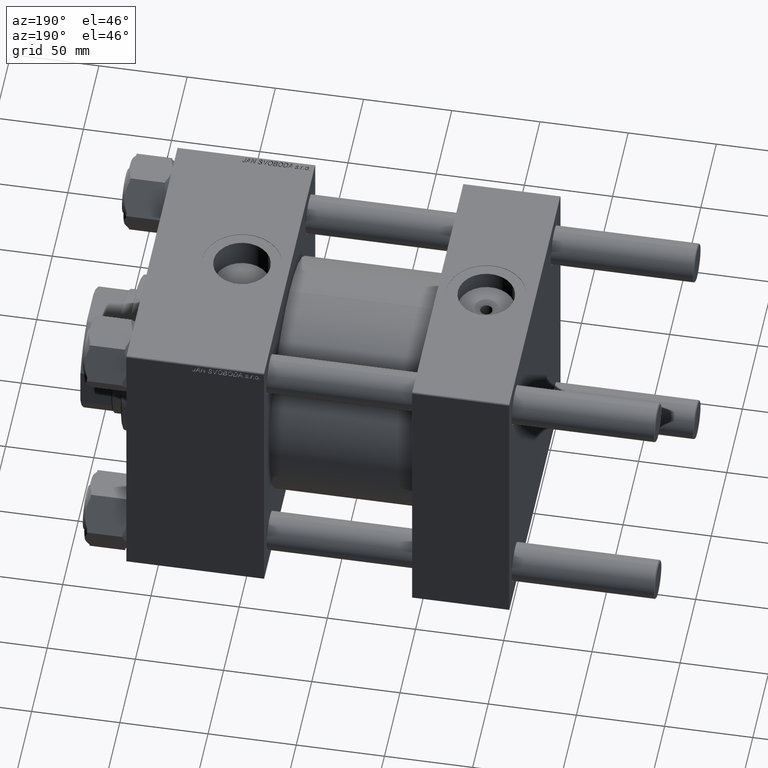
[diagram: clean part render]
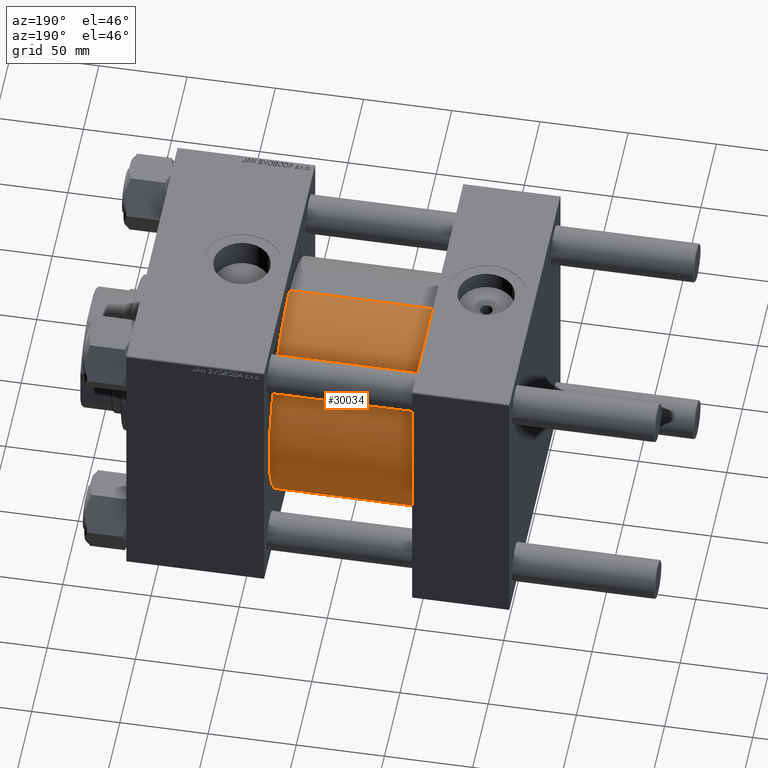
[diagram: same view with one face highlighted and labeled with its STEP entity id]
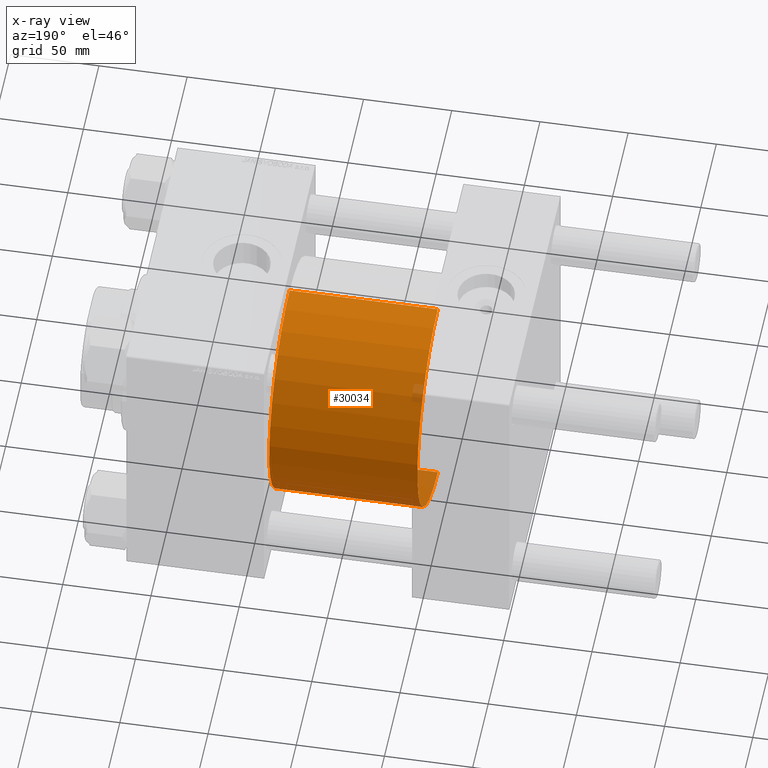
[diagram: x-ray of the same camera — body ghosted, the highlighted face saturated]
A machine part, auxiliary view. The second image highlights one B-rep face of the part: STEP entity #30034.
The next image is the same camera in x-ray: the body ghosted, the highlighted face saturated — about 2% of this face is hidden behind the body in this view.
In plain terms, the highlighted cylindrical surface (partial cylindrical patch) has radius 65.5 mm, axis along (-1, -0, -0).
Its self-contained STEP definition (entity closure, byte-faithful):
#470 = DIRECTION ( 'NONE',  ( 1.000000000000000000, -0.000000000000000000, -0.000000000000000000 ) ) ;
#3291 = VECTOR ( 'NONE', #14093, 1000.000000000000000 ) ;
#6070 = EDGE_CURVE ( 'NONE', #19322, #43782, #34004, .T. ) ;
#9867 = CARTESIAN_POINT ( 'NONE',  ( 139.0000000000000000, 0.000000000000000000, 0.000000000000000000 ) ) ;
#10768 = AXIS2_PLACEMENT_3D ( 'NONE', #50231, #19591, #26767 ) ;
#12428 = CARTESIAN_POINT ( 'NONE',  ( 139.0000000000000000, 0.000000000000000000, 65.50000000000001421 ) ) ;
#12686 = FACE_OUTER_BOUND ( 'NONE', #14901, .T. ) ;
#12769 = CARTESIAN_POINT ( 'NONE',  ( 54.99999999999999289, 8.021436534415164826E-15, -65.50000000000001421 ) ) ;
#14093 = DIRECTION ( 'NONE',  ( -1.000000000000000000, -0.000000000000000000, -0.000000000000000000 ) ) ;
#14901 = EDGE_LOOP ( 'NONE', ( #20919, #42021, #45162, #20939 ) ) ;
#19322 = VERTEX_POINT ( 'NONE', #36336 ) ;
#19591 = DIRECTION ( 'NONE',  ( 1.000000000000000000, 0.000000000000000000, 0.000000000000000000 ) ) ;
#19629 = VERTEX_POINT ( 'NONE', #36705 ) ;
#20919 = ORIENTED_EDGE ( 'NONE', *, *, #40686, .F. ) ;
#20939 = ORIENTED_EDGE ( 'NONE', *, *, #38288, .F. ) ;
#24690 = DIRECTION ( 'NONE',  ( 0.000000000000000000, 0.000000000000000000, 1.000000000000000000 ) ) ;
#26357 = CARTESIAN_POINT ( 'NONE',  ( 139.0000000000000000, 8.021436534415164826E-15, -65.50000000000001421 ) ) ;
#26767 = DIRECTION ( 'NONE',  ( 0.000000000000000000, 0.000000000000000000, -1.000000000000000000 ) ) ;
#28028 = DIRECTION ( 'NONE',  ( 0.000000000000000000, 0.000000000000000000, 1.000000000000000000 ) ) ;
#30034 = ADVANCED_FACE ( 'NONE', ( #12686 ), #44066, .T. ) ;
#32969 = LINE ( 'NONE', #41115, #40774 ) ;
#34004 = LINE ( 'NONE', #26357, #3291 ) ;
#36336 = CARTESIAN_POINT ( 'NONE',  ( 139.0000000000000000, 8.021436534415164826E-15, -65.50000000000001421 ) ) ;
#36705 = CARTESIAN_POINT ( 'NONE',  ( 54.99999999999999289, 0.000000000000000000, 65.50000000000001421 ) ) ;
#36883 = CIRCLE ( 'NONE', #49886, 65.50000000000001421 ) ;
#37035 = DIRECTION ( 'NONE',  ( -1.000000000000000000, -0.000000000000000000, -0.000000000000000000 ) ) ;
#38288 = EDGE_CURVE ( 'NONE', #38804, #19629, #32969, .T. ) ;
#38804 = VERTEX_POINT ( 'NONE', #12428 ) ;
#40686 = EDGE_CURVE ( 'NONE', #19322, #38804, #48254, .T. ) ;
#40774 = VECTOR ( 'NONE', #37035, 1000.000000000000000 ) ;
#40993 = DIRECTION ( 'NONE',  ( -1.000000000000000000, -0.000000000000000000, -0.000000000000000000 ) ) ;
#41115 = CARTESIAN_POINT ( 'NONE',  ( 139.0000000000000000, 0.000000000000000000, 65.50000000000001421 ) ) ;
#41591 = EDGE_CURVE ( 'NONE', #43782, #19629, #36883, .T. ) ;
#42021 = ORIENTED_EDGE ( 'NONE', *, *, #6070, .T. ) ;
#42166 = AXIS2_PLACEMENT_3D ( 'NONE', #9867, #40993, #24690 ) ;
#43782 = VERTEX_POINT ( 'NONE', #12769 ) ;
#44066 = CYLINDRICAL_SURFACE ( 'NONE', #42166, 65.50000000000001421 ) ;
#45162 = ORIENTED_EDGE ( 'NONE', *, *, #41591, .T. ) ;
#46906 = CARTESIAN_POINT ( 'NONE',  ( 54.99999999999999289, 0.000000000000000000, 0.000000000000000000 ) ) ;
#48254 = CIRCLE ( 'NONE', #10768, 65.50000000000001421 ) ;
#49886 = AXIS2_PLACEMENT_3D ( 'NONE', #46906, #470, #28028 ) ;
#50231 = CARTESIAN_POINT ( 'NONE',  ( 139.0000000000000000, 0.000000000000000000, 0.000000000000000000 ) ) ;